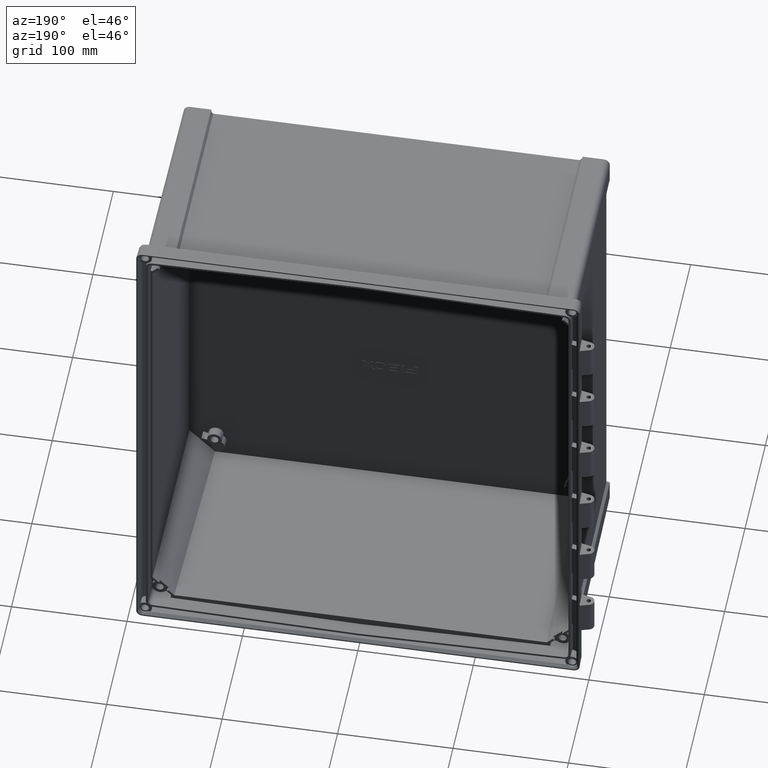
[diagram: clean part render]
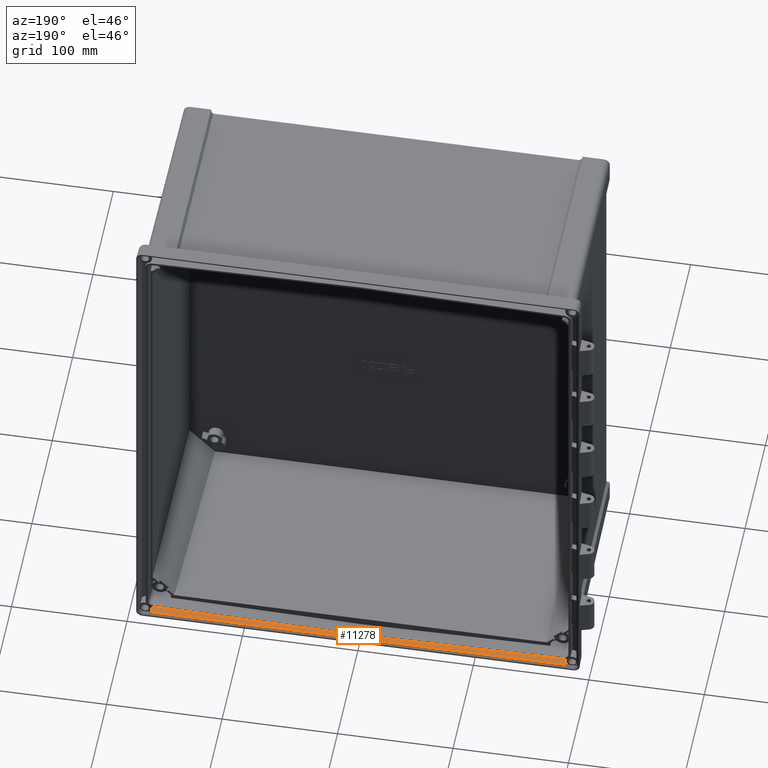
[diagram: same view with one face highlighted and labeled with its STEP entity id]
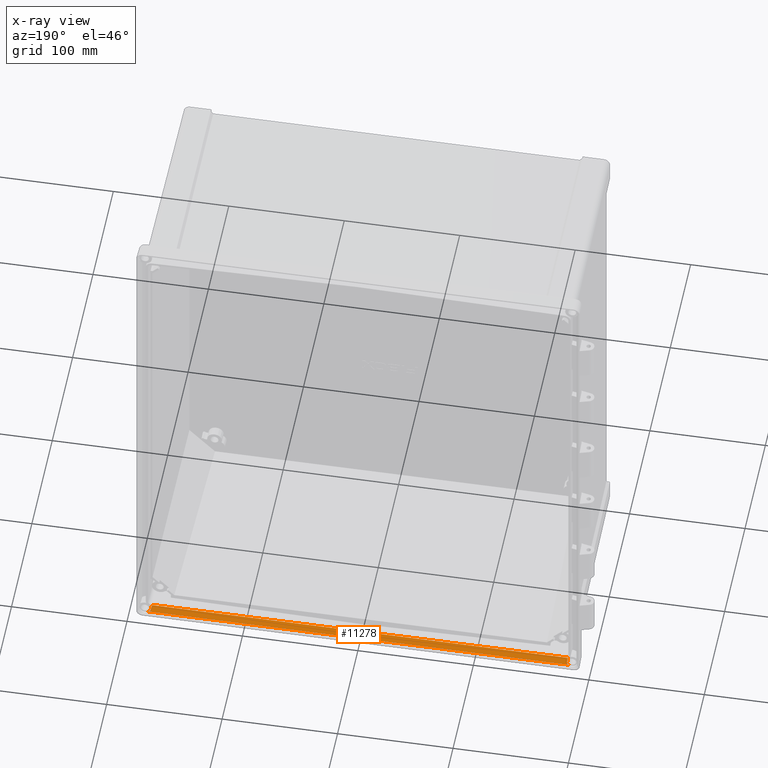
[diagram: x-ray of the same camera — body ghosted, the highlighted face saturated]
A machine part, auxiliary view. The second image highlights one B-rep face of the part: STEP entity #11278.
The next image is the same camera in x-ray: the body ghosted, the highlighted face saturated — about 0% of this face is hidden behind the body in this view.
In plain terms, the highlighted planar face has unit normal (0, -0.0349, -0.9994).
Its self-contained STEP definition (entity closure, byte-faithful):
#20 = ORIENTED_EDGE ( 'NONE', *, *, #8414, .F. ) ;
#96 =( BOUNDED_CURVE ( )  B_SPLINE_CURVE ( 3, ( #9563, #16078, #10941, #3023 ),
 .UNSPECIFIED., .F., .F. ) 
 B_SPLINE_CURVE_WITH_KNOTS ( ( 4, 4 ),
 ( 3.663836665468219500, 3.710396781577729900 ),
 .UNSPECIFIED. ) 
 CURVE ( )  GEOMETRIC_REPRESENTATION_ITEM ( )  RATIONAL_B_SPLINE_CURVE ( ( 1.000000000000000000, 0.9998193544577814700, 0.9998193544577814700, 1.000000000000000000 ) ) 
 REPRESENTATION_ITEM ( '' )  );
#224 = CARTESIAN_POINT ( 'NONE',  ( -180.4263809004914700, -3.200000000000000200, -218.3335561451601700 ) ) ;
#773 = VERTEX_POINT ( 'NONE', #13012 ) ;
#954 = CARTESIAN_POINT ( 'NONE',  ( -180.0614772615418200, -10.52288663728130700, -218.0778353088854800 ) ) ;
#1132 = CARTESIAN_POINT ( 'NONE',  ( 180.4263809004914700, -3.200000000000000200, -218.3335561451601700 ) ) ;
#1218 = EDGE_CURVE ( 'NONE', #4256, #6008, #14305, .T. ) ;
#1423 = CARTESIAN_POINT ( 'NONE',  ( -182.2801327483235800, -2.942697711494663100, -218.3425413390667400 ) ) ;
#1758 = ORIENTED_EDGE ( 'NONE', *, *, #12141, .T. ) ;
#1865 = DIRECTION ( 'NONE',  ( 1.000000000000000000, 0.0000000000000000000, 0.0000000000000000000 ) ) ;
#1882 = CARTESIAN_POINT ( 'NONE',  ( 182.2801327483235800, -2.942697711494946400, -218.3425413390667100 ) ) ;
#2204 = CARTESIAN_POINT ( 'NONE',  ( 180.0614772615418500, -10.52288663728130700, -218.0778353088854800 ) ) ;
#3023 = CARTESIAN_POINT ( 'NONE',  ( 180.0614772615418500, -10.52288663728130700, -218.0778353088854800 ) ) ;
#3025 = EDGE_LOOP ( 'NONE', ( #15036, #1758, #9998, #11453, #11090, #20, #14410, #9075 ) ) ;
#3610 = DIRECTION ( 'NONE',  ( -1.000000000000000000, -0.0000000000000000000, -0.0000000000000000000 ) ) ;
#3870 = VECTOR ( 'NONE', #1865, 1000.000000000000000 ) ;
#3945 = VECTOR ( 'NONE', #8573, 1000.000000000000000 ) ;
#4256 = VERTEX_POINT ( 'NONE', #7679 ) ;
#4316 = EDGE_CURVE ( 'NONE', #13311, #773, #5105, .T. ) ;
#4320 = DIRECTION ( 'NONE',  ( 0.0000000000000000000, -0.03489949670250105200, -0.9993908270190957600 ) ) ;
#5105 =( BOUNDED_CURVE ( )  B_SPLINE_CURVE ( 3, ( #13188, #5553, #1423, #10750 ),
 .UNSPECIFIED., .F., .F. ) 
 B_SPLINE_CURVE_WITH_KNOTS ( ( 4, 4 ),
 ( 5.282237009082900100, 5.286523943867204700 ),
 .UNSPECIFIED. ) 
 CURVE ( )  GEOMETRIC_REPRESENTATION_ITEM ( )  RATIONAL_B_SPLINE_CURVE ( ( 1.000000000000000000, 0.9999984685164325900, 0.9999984685164325900, 1.000000000000000000 ) ) 
 REPRESENTATION_ITEM ( '' )  );
#5425 = EDGE_CURVE ( 'NONE', #9340, #773, #15285, .T. ) ;
#5553 = CARTESIAN_POINT ( 'NONE',  ( -182.2776294543382700, -3.071260300095491700, -218.3380518345449600 ) ) ;
#5824 = CARTESIAN_POINT ( 'NONE',  ( -191.5111092271158100, -10.52288663728130700, -218.0778353088854800 ) ) ;
#5969 = LINE ( 'NONE', #9701, #3945 ) ;
#6008 = VERTEX_POINT ( 'NONE', #2204 ) ;
#6081 = CARTESIAN_POINT ( 'NONE',  ( -192.0000000000002800, -3.200000000000000200, -218.3335561451601700 ) ) ;
#7017 = CARTESIAN_POINT ( 'NONE',  ( 182.2776294543382700, -3.071260300095645800, -218.3380518345449600 ) ) ;
#7364 =( BOUNDED_CURVE ( )  B_SPLINE_CURVE ( 3, ( #14689, #1882, #7017, #15818 ),
 .UNSPECIFIED., .F., .F. ) 
 B_SPLINE_CURVE_WITH_KNOTS ( ( 4, 4 ),
 ( 0.9966613633123864200, 1.000948298096686600 ),
 .UNSPECIFIED. ) 
 CURVE ( )  GEOMETRIC_REPRESENTATION_ITEM ( )  RATIONAL_B_SPLINE_CURVE ( ( 1.000000000000000000, 0.9999984685164325900, 0.9999984685164325900, 1.000000000000000000 ) ) 
 REPRESENTATION_ITEM ( '' )  );
#7679 = CARTESIAN_POINT ( 'NONE',  ( -180.0614772615418200, -10.52288663728130700, -218.0778353088854800 ) ) ;
#7978 = DIRECTION ( 'NONE',  ( 0.0000000000000000000, 0.9993908270190956500, -0.03489949670250104600 ) ) ;
#8077 = LINE ( 'NONE', #6081, #12483 ) ;
#8414 = EDGE_CURVE ( 'NONE', #15141, #10171, #5969, .T. ) ;
#8573 = DIRECTION ( 'NONE',  ( -1.000000000000000000, -0.0000000000000000000, -0.0000000000000000000 ) ) ;
#9075 = ORIENTED_EDGE ( 'NONE', *, *, #5425, .T. ) ;
#9340 = VERTEX_POINT ( 'NONE', #14110 ) ;
#9379 = CARTESIAN_POINT ( 'NONE',  ( 182.2751345007981200, -3.200000000000000200, -218.3335561451601700 ) ) ;
#9563 = CARTESIAN_POINT ( 'NONE',  ( 180.4263809004914700, -3.200000000000000200, -218.3335561451601700 ) ) ;
#9701 = CARTESIAN_POINT ( 'NONE',  ( -192.0000000000002800, -3.200000000000000200, -218.3335561451601700 ) ) ;
#9746 = CARTESIAN_POINT ( 'NONE',  ( -180.4263809004914700, -3.200000000000000200, -218.3335561451601700 ) ) ;
#9944 = VERTEX_POINT ( 'NONE', #224 ) ;
#9998 = ORIENTED_EDGE ( 'NONE', *, *, #10948, .F. ) ;
#10171 = VERTEX_POINT ( 'NONE', #1132 ) ;
#10576 = EDGE_CURVE ( 'NONE', #10171, #6008, #96, .T. ) ;
#10616 = PLANE ( 'NONE',  #15119 ) ;
#10750 = CARTESIAN_POINT ( 'NONE',  ( -182.2826443712529000, -2.814312824871977100, -218.3470246380987300 ) ) ;
#10941 = CARTESIAN_POINT ( 'NONE',  ( 180.1813819501089400, -7.988513500252208700, -218.1663375690097800 ) ) ;
#10948 = EDGE_CURVE ( 'NONE', #4256, #9944, #11541, .T. ) ;
#11079 = DIRECTION ( 'NONE',  ( 1.000000000000000000, -0.0000000000000000000, -0.0000000000000000000 ) ) ;
#11090 = ORIENTED_EDGE ( 'NONE', *, *, #10576, .F. ) ;
#11278 = ADVANCED_FACE ( 'NONE', ( #15937 ), #10616, .F. ) ;
#11283 = CARTESIAN_POINT ( 'NONE',  ( -186.4996942995560700, -2.814312824871977100, -218.3470246380987300 ) ) ;
#11453 = ORIENTED_EDGE ( 'NONE', *, *, #1218, .T. ) ;
#11541 =( BOUNDED_CURVE ( )  B_SPLINE_CURVE ( 3, ( #954, #12480, #16154, #9746 ),
 .UNSPECIFIED., .F., .F. ) 
 B_SPLINE_CURVE_WITH_KNOTS ( ( 4, 4 ),
 ( 2.572788525601854100, 2.619348641711366700 ),
 .UNSPECIFIED. ) 
 CURVE ( )  GEOMETRIC_REPRESENTATION_ITEM ( )  RATIONAL_B_SPLINE_CURVE ( ( 1.000000000000000000, 0.9998193544577814700, 0.9998193544577814700, 1.000000000000000000 ) ) 
 REPRESENTATION_ITEM ( '' )  );
#11895 = CARTESIAN_POINT ( 'NONE',  ( -192.0000000000002800, 0.1046984901075031500, -218.4489587593729400 ) ) ;
#12141 = EDGE_CURVE ( 'NONE', #13311, #9944, #8077, .T. ) ;
#12480 = CARTESIAN_POINT ( 'NONE',  ( -180.1813819501089700, -7.988513500252467200, -218.1663375690097600 ) ) ;
#12483 = VECTOR ( 'NONE', #11079, 1000.000000000000000 ) ;
#13012 = CARTESIAN_POINT ( 'NONE',  ( -182.2826443712529000, -2.814312824871977100, -218.3470246380987300 ) ) ;
#13036 = EDGE_CURVE ( 'NONE', #9340, #15141, #7364, .T. ) ;
#13188 = CARTESIAN_POINT ( 'NONE',  ( -182.2751345007981200, -3.200000000000000200, -218.3335561451601700 ) ) ;
#13311 = VERTEX_POINT ( 'NONE', #15514 ) ;
#13663 = VECTOR ( 'NONE', #3610, 1000.000000000000000 ) ;
#14110 = CARTESIAN_POINT ( 'NONE',  ( 182.2826443712528700, -2.814312824871977100, -218.3470246380987300 ) ) ;
#14305 = LINE ( 'NONE', #5824, #3870 ) ;
#14410 = ORIENTED_EDGE ( 'NONE', *, *, #13036, .F. ) ;
#14689 = CARTESIAN_POINT ( 'NONE',  ( 182.2826443712528700, -2.814312824871977100, -218.3470246380987300 ) ) ;
#15036 = ORIENTED_EDGE ( 'NONE', *, *, #4316, .F. ) ;
#15119 = AXIS2_PLACEMENT_3D ( 'NONE', #11895, #4320, #7978 ) ;
#15141 = VERTEX_POINT ( 'NONE', #9379 ) ;
#15285 = LINE ( 'NONE', #11283, #13663 ) ;
#15514 = CARTESIAN_POINT ( 'NONE',  ( -182.2751345007981200, -3.200000000000000200, -218.3335561451601700 ) ) ;
#15818 = CARTESIAN_POINT ( 'NONE',  ( 182.2751345007981200, -3.200000000000000200, -218.3335561451601700 ) ) ;
#15937 = FACE_OUTER_BOUND ( 'NONE', #3025, .T. ) ;
#16078 = CARTESIAN_POINT ( 'NONE',  ( 180.3030384731340800, -5.547110259212861800, -218.2515932488265100 ) ) ;
#16154 = CARTESIAN_POINT ( 'NONE',  ( -180.3030384731340500, -5.547110259213030600, -218.2515932488265100 ) ) ;